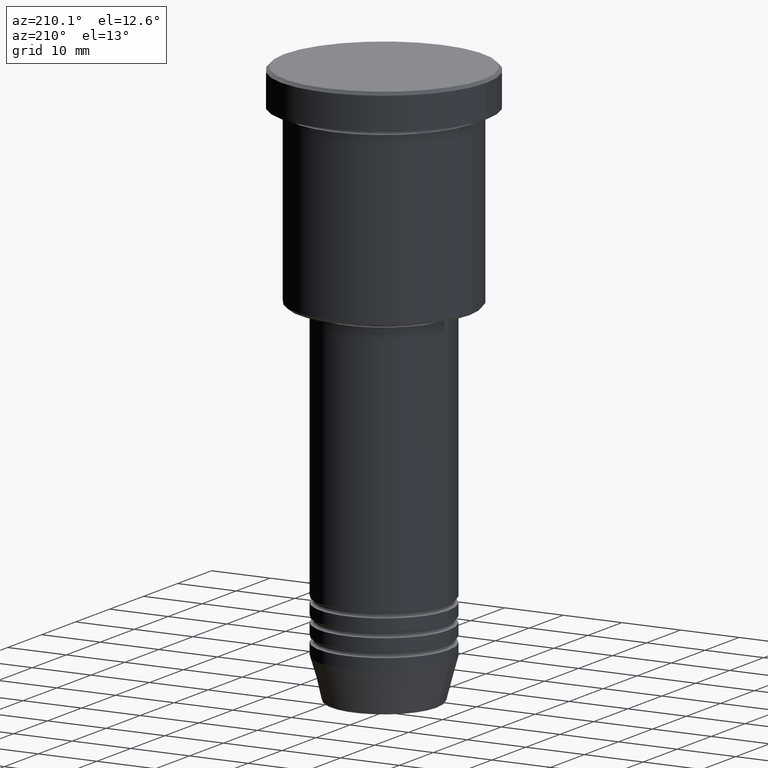
[diagram: clean part render]
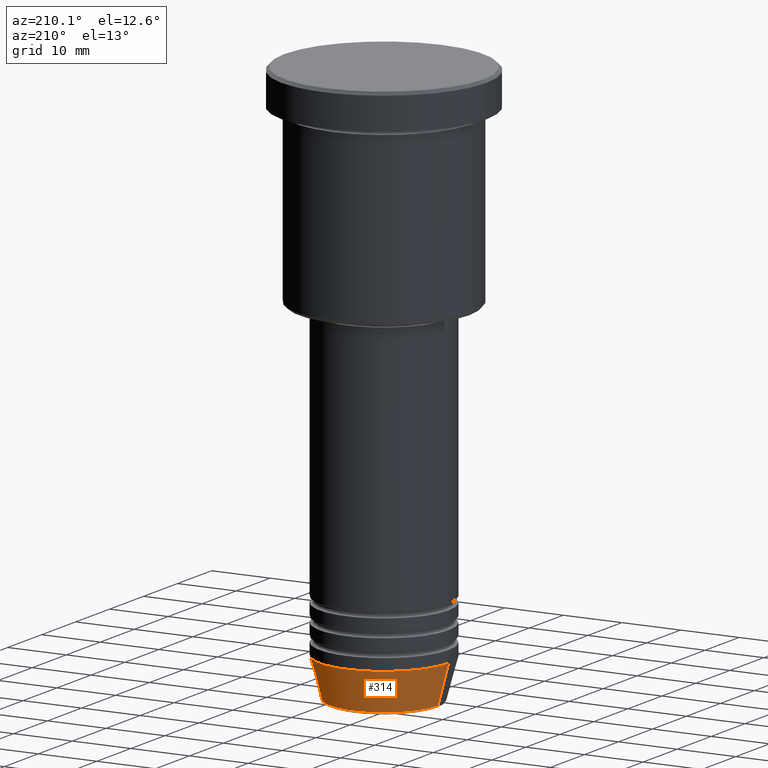
[diagram: same view with one face highlighted and labeled with its STEP entity id]
A machine part, auxiliary view. The second image highlights one B-rep face of the part: STEP entity #314.
In plain terms, the highlighted conical surface has half-angle 15 deg.
Its self-contained STEP definition (entity closure, byte-faithful):
#159 = FACE_OUTER_BOUND ( 'NONE', #807, .T. ) ;
#162 = DIRECTION ( 'NONE',  ( 1.000000000000000000, 0.000000000000000000, 0.000000000000000000 ) ) ;
#165 = CARTESIAN_POINT ( 'NONE',  ( 9.223655072137187716, 0.000000000000000000, -95.62940952255125637 ) ) ;
#168 = VERTEX_POINT ( 'NONE', #958 ) ;
#171 = DIRECTION ( 'NONE',  ( -0.000000000000000000, -0.000000000000000000, 1.000000000000000000 ) ) ;
#183 = CIRCLE ( 'NONE', #473, 9.223655072137187716 ) ;
#238 = EDGE_CURVE ( 'NONE', #1157, #457, #950, .T. ) ;
#312 = ORIENTED_EDGE ( 'NONE', *, *, #1053, .T. ) ;
#314 = ADVANCED_FACE ( 'NONE', ( #159 ), #795, .T. ) ;
#359 = CARTESIAN_POINT ( 'NONE',  ( 11.00000000000000000, 0.000000000000000000, -89.00000000000000000 ) ) ;
#379 = VERTEX_POINT ( 'NONE', #165 ) ;
#448 = CARTESIAN_POINT ( 'NONE',  ( -11.00000000000000000, 1.347111479062088405E-15, -89.00000000000000000 ) ) ;
#457 = VERTEX_POINT ( 'NONE', #448 ) ;
#467 = CARTESIAN_POINT ( 'NONE',  ( -11.00000000000000000, 1.347111479062088405E-15, -89.00000000000000000 ) ) ;
#473 = AXIS2_PLACEMENT_3D ( 'NONE', #1142, #171, #1022 ) ;
#521 = CARTESIAN_POINT ( 'NONE',  ( 0.000000000000000000, 0.000000000000000000, -89.00000000000000000 ) ) ;
#545 = AXIS2_PLACEMENT_3D ( 'NONE', #521, #883, #162 ) ;
#554 = ORIENTED_EDGE ( 'NONE', *, *, #1082, .T. ) ;
#626 = LINE ( 'NONE', #467, #1004 ) ;
#722 = LINE ( 'NONE', #359, #814 ) ;
#726 = ORIENTED_EDGE ( 'NONE', *, *, #238, .F. ) ;
#795 = CONICAL_SURFACE ( 'NONE', #545, 11.00000000000000000, 0.2617993877991500740 ) ;
#807 = EDGE_LOOP ( 'NONE', ( #312, #554, #726, #967 ) ) ;
#814 = VECTOR ( 'NONE', #828, 1000.000000000000000 ) ;
#828 = DIRECTION ( 'NONE',  ( 0.2588190451025213501, 0.000000000000000000, 0.9659258262890680902 ) ) ;
#865 = DIRECTION ( 'NONE',  ( 1.000000000000000000, 0.000000000000000000, 0.000000000000000000 ) ) ;
#883 = DIRECTION ( 'NONE',  ( -0.000000000000000000, -0.000000000000000000, 1.000000000000000000 ) ) ;
#950 = CIRCLE ( 'NONE', #1094, 11.00000000000000000 ) ;
#958 = CARTESIAN_POINT ( 'NONE',  ( -9.223655072137187716, 1.238341722557647004E-15, -95.62940952255125637 ) ) ;
#967 = ORIENTED_EDGE ( 'NONE', *, *, #1144, .F. ) ;
#993 = DIRECTION ( 'NONE',  ( -0.2588190451025213501, 3.169619151431772337E-17, 0.9659258262890680902 ) ) ;
#997 = CARTESIAN_POINT ( 'NONE',  ( 11.00000000000000000, 0.000000000000000000, -89.00000000000000000 ) ) ;
#1004 = VECTOR ( 'NONE', #993, 1000.000000000000000 ) ;
#1022 = DIRECTION ( 'NONE',  ( 1.000000000000000000, 0.000000000000000000, 0.000000000000000000 ) ) ;
#1053 = EDGE_CURVE ( 'NONE', #379, #168, #183, .T. ) ;
#1057 = CARTESIAN_POINT ( 'NONE',  ( 0.000000000000000000, 0.000000000000000000, -89.00000000000000000 ) ) ;
#1082 = EDGE_CURVE ( 'NONE', #168, #457, #626, .T. ) ;
#1094 = AXIS2_PLACEMENT_3D ( 'NONE', #1057, #1145, #865 ) ;
#1142 = CARTESIAN_POINT ( 'NONE',  ( 0.000000000000000000, 0.000000000000000000, -95.62940952255125637 ) ) ;
#1144 = EDGE_CURVE ( 'NONE', #379, #1157, #722, .T. ) ;
#1145 = DIRECTION ( 'NONE',  ( -0.000000000000000000, -0.000000000000000000, 1.000000000000000000 ) ) ;
#1157 = VERTEX_POINT ( 'NONE', #997 ) ;